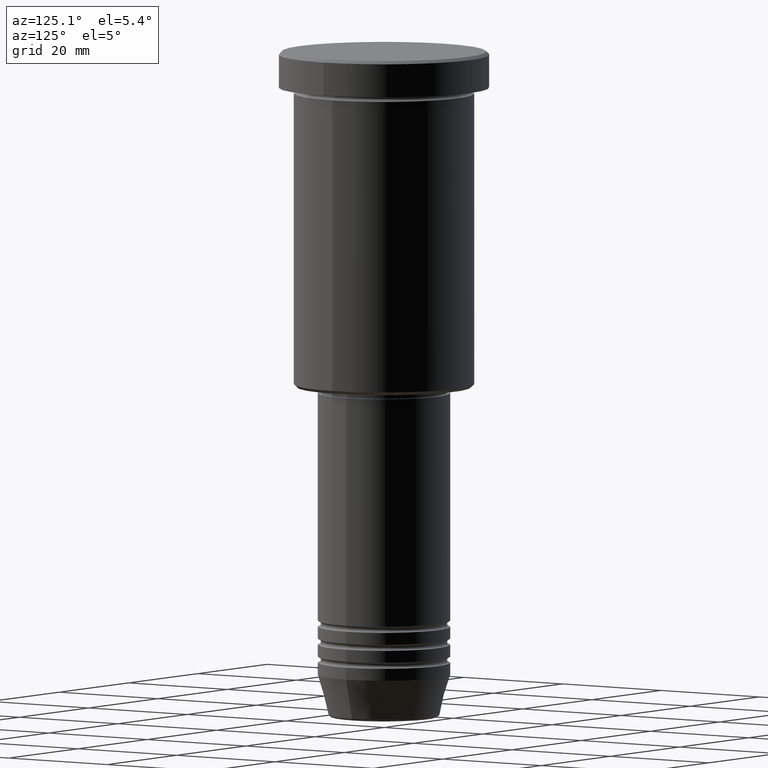
[diagram: clean part render]
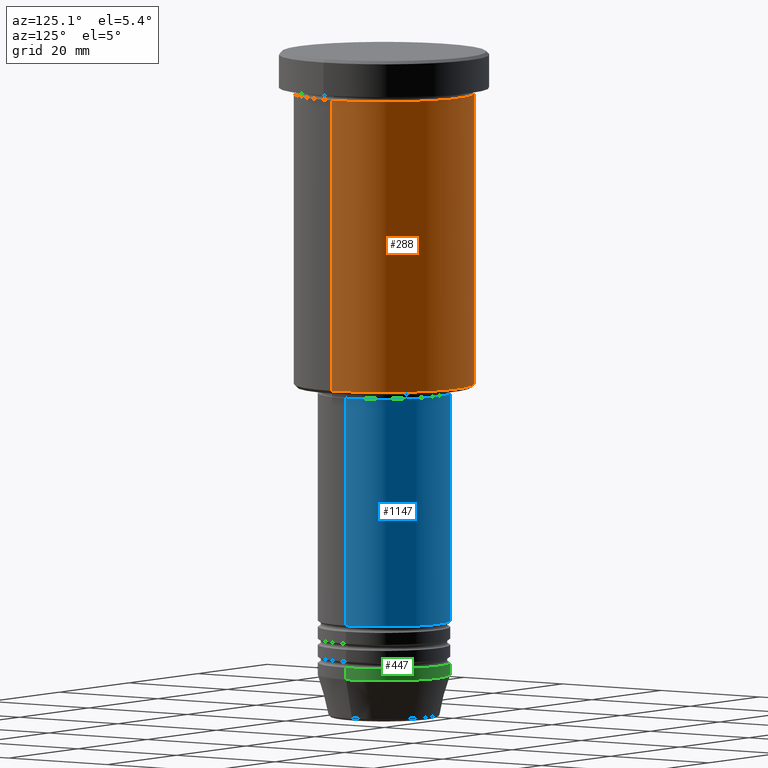
[diagram: same view with three faces highlighted in distinct colors, each labeled with its STEP entity id]
A machine part, auxiliary view with three faces highlighted in distinct colors.
Their STEP definitions:

[orange] entity #288 — the highlighted cylindrical surface (partial cylindrical patch) has radius 15 mm, axis along (-0, -0, 1).
#17 = DIRECTION ( 'NONE',  ( 1.000000000000000000, 0.000000000000000000, 0.000000000000000000 ) ) ;
#68 = VERTEX_POINT ( 'NONE', #1006 ) ;
#83 = CARTESIAN_POINT ( 'NONE',  ( 15.00000000000000000, 0.000000000000000000, -6.999999999999995559 ) ) ;
#90 = AXIS2_PLACEMENT_3D ( 'NONE', #265, #616, #174 ) ;
#161 = EDGE_LOOP ( 'NONE', ( #896, #1159, #1125, #711 ) ) ;
#171 = EDGE_CURVE ( 'NONE', #68, #262, #523, .T. ) ;
#174 = DIRECTION ( 'NONE',  ( -1.000000000000000000, 0.000000000000000000, 0.000000000000000000 ) ) ;
#175 = VERTEX_POINT ( 'NONE', #1128 ) ;
#183 = DIRECTION ( 'NONE',  ( -0.000000000000000000, -0.000000000000000000, 1.000000000000000000 ) ) ;
#201 = VERTEX_POINT ( 'NONE', #1144 ) ;
#262 = VERTEX_POINT ( 'NONE', #83 ) ;
#265 = CARTESIAN_POINT ( 'NONE',  ( 0.000000000000000000, 0.000000000000000000, -55.50000000000000711 ) ) ;
#277 = DIRECTION ( 'NONE',  ( 1.000000000000000000, 0.000000000000000000, 0.000000000000000000 ) ) ;
#288 = ADVANCED_FACE ( 'NONE', ( #727 ), #446, .T. ) ;
#291 = CARTESIAN_POINT ( 'NONE',  ( 0.000000000000000000, 0.000000000000000000, -6.999999999999995559 ) ) ;
#353 = EDGE_CURVE ( 'NONE', #68, #201, #678, .T. ) ;
#446 = CYLINDRICAL_SURFACE ( 'NONE', #1075, 15.00000000000000000 ) ;
#500 = DIRECTION ( 'NONE',  ( -0.000000000000000000, -0.000000000000000000, 1.000000000000000000 ) ) ;
#523 = LINE ( 'NONE', #887, #940 ) ;
#529 = AXIS2_PLACEMENT_3D ( 'NONE', #291, #827, #17 ) ;
#602 = VECTOR ( 'NONE', #1074, 1000.000000000000000 ) ;
#616 = DIRECTION ( 'NONE',  ( -0.000000000000000000, -0.000000000000000000, 1.000000000000000000 ) ) ;
#678 = CIRCLE ( 'NONE', #90, 15.00000000000000000 ) ;
#711 = ORIENTED_EDGE ( 'NONE', *, *, #171, .F. ) ;
#725 = EDGE_CURVE ( 'NONE', #201, #175, #897, .T. ) ;
#727 = FACE_OUTER_BOUND ( 'NONE', #161, .T. ) ;
#807 = CARTESIAN_POINT ( 'NONE',  ( -15.00000000000000000, 1.836970198721029589E-15, 0.000000000000000000 ) ) ;
#827 = DIRECTION ( 'NONE',  ( -0.000000000000000000, -0.000000000000000000, 1.000000000000000000 ) ) ;
#866 = EDGE_CURVE ( 'NONE', #262, #175, #1035, .T. ) ;
#887 = CARTESIAN_POINT ( 'NONE',  ( 15.00000000000000000, 0.000000000000000000, 0.000000000000000000 ) ) ;
#896 = ORIENTED_EDGE ( 'NONE', *, *, #353, .T. ) ;
#897 = LINE ( 'NONE', #807, #602 ) ;
#940 = VECTOR ( 'NONE', #500, 1000.000000000000000 ) ;
#982 = CARTESIAN_POINT ( 'NONE',  ( 0.000000000000000000, 0.000000000000000000, 0.000000000000000000 ) ) ;
#1006 = CARTESIAN_POINT ( 'NONE',  ( 15.00000000000000000, 0.000000000000000000, -55.50000000000000711 ) ) ;
#1035 = CIRCLE ( 'NONE', #529, 15.00000000000000000 ) ;
#1074 = DIRECTION ( 'NONE',  ( -0.000000000000000000, -0.000000000000000000, 1.000000000000000000 ) ) ;
#1075 = AXIS2_PLACEMENT_3D ( 'NONE', #982, #183, #277 ) ;
#1125 = ORIENTED_EDGE ( 'NONE', *, *, #866, .F. ) ;
#1128 = CARTESIAN_POINT ( 'NONE',  ( -15.00000000000000000, 1.836970198721029589E-15, -6.999999999999995559 ) ) ;
#1144 = CARTESIAN_POINT ( 'NONE',  ( -15.00000000000000000, 1.836970198721029589E-15, -55.50000000000000711 ) ) ;
#1159 = ORIENTED_EDGE ( 'NONE', *, *, #725, .T. ) ;

[blue] entity #1147 — the highlighted cylindrical surface (partial cylindrical patch) has radius 11 mm, axis along (-0, -0, 1).
#54 = DIRECTION ( 'NONE',  ( 1.000000000000000000, 0.000000000000000000, 0.000000000000000000 ) ) ;
#109 = EDGE_CURVE ( 'NONE', #936, #806, #328, .T. ) ;
#142 = ORIENTED_EDGE ( 'NONE', *, *, #109, .F. ) ;
#188 = CARTESIAN_POINT ( 'NONE',  ( 0.000000000000000000, 0.000000000000000000, -57.00000000000000000 ) ) ;
#270 = DIRECTION ( 'NONE',  ( -0.000000000000000000, -0.000000000000000000, 1.000000000000000000 ) ) ;
#292 = CARTESIAN_POINT ( 'NONE',  ( -11.00000000000000000, 1.347111479062088405E-15, 0.000000000000000000 ) ) ;
#328 = LINE ( 'NONE', #427, #774 ) ;
#334 = VERTEX_POINT ( 'NONE', #356 ) ;
#356 = CARTESIAN_POINT ( 'NONE',  ( -11.00000000000000000, 1.347111479062088405E-15, -57.00000000000000000 ) ) ;
#364 = ORIENTED_EDGE ( 'NONE', *, *, #1066, .T. ) ;
#390 = CARTESIAN_POINT ( 'NONE',  ( -11.00000000000000000, 1.347111479062088405E-15, -94.99999999999997158 ) ) ;
#427 = CARTESIAN_POINT ( 'NONE',  ( 11.00000000000000000, 0.000000000000000000, 0.000000000000000000 ) ) ;
#436 = AXIS2_PLACEMENT_3D ( 'NONE', #937, #870, #54 ) ;
#467 = VERTEX_POINT ( 'NONE', #390 ) ;
#498 = EDGE_CURVE ( 'NONE', #467, #334, #1099, .T. ) ;
#512 = AXIS2_PLACEMENT_3D ( 'NONE', #188, #270, #708 ) ;
#525 = CYLINDRICAL_SURFACE ( 'NONE', #1174, 11.00000000000000000 ) ;
#662 = ORIENTED_EDGE ( 'NONE', *, *, #498, .T. ) ;
#673 = EDGE_CURVE ( 'NONE', #806, #334, #1154, .T. ) ;
#690 = ORIENTED_EDGE ( 'NONE', *, *, #673, .F. ) ;
#708 = DIRECTION ( 'NONE',  ( 1.000000000000000000, 0.000000000000000000, 0.000000000000000000 ) ) ;
#712 = CARTESIAN_POINT ( 'NONE',  ( 0.000000000000000000, 0.000000000000000000, 0.000000000000000000 ) ) ;
#772 = DIRECTION ( 'NONE',  ( -0.000000000000000000, -0.000000000000000000, 1.000000000000000000 ) ) ;
#774 = VECTOR ( 'NONE', #772, 1000.000000000000000 ) ;
#788 = EDGE_LOOP ( 'NONE', ( #364, #662, #690, #142 ) ) ;
#793 = FACE_OUTER_BOUND ( 'NONE', #788, .T. ) ;
#795 = VECTOR ( 'NONE', #1009, 1000.000000000000000 ) ;
#806 = VERTEX_POINT ( 'NONE', #820 ) ;
#820 = CARTESIAN_POINT ( 'NONE',  ( 11.00000000000000000, 0.000000000000000000, -57.00000000000000000 ) ) ;
#870 = DIRECTION ( 'NONE',  ( -0.000000000000000000, -0.000000000000000000, 1.000000000000000000 ) ) ;
#889 = DIRECTION ( 'NONE',  ( -0.000000000000000000, -0.000000000000000000, 1.000000000000000000 ) ) ;
#936 = VERTEX_POINT ( 'NONE', #1004 ) ;
#937 = CARTESIAN_POINT ( 'NONE',  ( 0.000000000000000000, 0.000000000000000000, -94.99999999999997158 ) ) ;
#1004 = CARTESIAN_POINT ( 'NONE',  ( 11.00000000000000000, 0.000000000000000000, -94.99999999999997158 ) ) ;
#1009 = DIRECTION ( 'NONE',  ( -0.000000000000000000, -0.000000000000000000, 1.000000000000000000 ) ) ;
#1066 = EDGE_CURVE ( 'NONE', #936, #467, #1135, .T. ) ;
#1099 = LINE ( 'NONE', #292, #795 ) ;
#1135 = CIRCLE ( 'NONE', #436, 11.00000000000000000 ) ;
#1147 = ADVANCED_FACE ( 'NONE', ( #793 ), #525, .T. ) ;
#1153 = DIRECTION ( 'NONE',  ( 1.000000000000000000, 0.000000000000000000, 0.000000000000000000 ) ) ;
#1154 = CIRCLE ( 'NONE', #512, 11.00000000000000000 ) ;
#1174 = AXIS2_PLACEMENT_3D ( 'NONE', #712, #889, #1153 ) ;

[green] entity #447 — the highlighted cylindrical surface (partial cylindrical patch) has radius 11 mm, axis along (-0, -0, 1).
#85 = EDGE_CURVE ( 'NONE', #218, #576, #1158, .T. ) ;
#88 = ORIENTED_EDGE ( 'NONE', *, *, #85, .F. ) ;
#128 = EDGE_CURVE ( 'NONE', #576, #990, #1110, .T. ) ;
#131 = CARTESIAN_POINT ( 'NONE',  ( 11.00000000000000000, 0.000000000000000000, -102.0000000000000142 ) ) ;
#147 = CARTESIAN_POINT ( 'NONE',  ( 11.00000000000000000, 0.000000000000000000, -104.0000000000000142 ) ) ;
#150 = AXIS2_PLACEMENT_3D ( 'NONE', #1161, #279, #1069 ) ;
#163 = LINE ( 'NONE', #627, #514 ) ;
#209 = VECTOR ( 'NONE', #1149, 1000.000000000000000 ) ;
#215 = CYLINDRICAL_SURFACE ( 'NONE', #528, 11.00000000000000000 ) ;
#218 = VERTEX_POINT ( 'NONE', #147 ) ;
#263 = DIRECTION ( 'NONE',  ( -0.000000000000000000, -0.000000000000000000, 1.000000000000000000 ) ) ;
#279 = DIRECTION ( 'NONE',  ( -0.000000000000000000, -0.000000000000000000, 1.000000000000000000 ) ) ;
#281 = EDGE_LOOP ( 'NONE', ( #663, #733, #948, #88 ) ) ;
#397 = DIRECTION ( 'NONE',  ( -0.000000000000000000, -0.000000000000000000, 1.000000000000000000 ) ) ;
#408 = CARTESIAN_POINT ( 'NONE',  ( -11.00000000000000000, 1.347111479062088405E-15, -104.0000000000000142 ) ) ;
#447 = ADVANCED_FACE ( 'NONE', ( #1116 ), #215, .T. ) ;
#482 = CARTESIAN_POINT ( 'NONE',  ( 0.000000000000000000, 0.000000000000000000, 0.000000000000000000 ) ) ;
#514 = VECTOR ( 'NONE', #263, 1000.000000000000000 ) ;
#516 = CARTESIAN_POINT ( 'NONE',  ( -11.00000000000000000, 1.347111479062088405E-15, -102.0000000000000142 ) ) ;
#528 = AXIS2_PLACEMENT_3D ( 'NONE', #482, #397, #660 ) ;
#572 = VERTEX_POINT ( 'NONE', #408 ) ;
#576 = VERTEX_POINT ( 'NONE', #131 ) ;
#589 = DIRECTION ( 'NONE',  ( 1.000000000000000000, 0.000000000000000000, 0.000000000000000000 ) ) ;
#627 = CARTESIAN_POINT ( 'NONE',  ( -11.00000000000000000, 1.347111479062088405E-15, 0.000000000000000000 ) ) ;
#658 = CIRCLE ( 'NONE', #150, 11.00000000000000000 ) ;
#660 = DIRECTION ( 'NONE',  ( 1.000000000000000000, 0.000000000000000000, 0.000000000000000000 ) ) ;
#663 = ORIENTED_EDGE ( 'NONE', *, *, #693, .T. ) ;
#689 = CARTESIAN_POINT ( 'NONE',  ( 0.000000000000000000, 0.000000000000000000, -102.0000000000000142 ) ) ;
#693 = EDGE_CURVE ( 'NONE', #218, #572, #658, .T. ) ;
#733 = ORIENTED_EDGE ( 'NONE', *, *, #1129, .T. ) ;
#791 = CARTESIAN_POINT ( 'NONE',  ( 11.00000000000000000, 0.000000000000000000, 0.000000000000000000 ) ) ;
#847 = AXIS2_PLACEMENT_3D ( 'NONE', #689, #947, #589 ) ;
#947 = DIRECTION ( 'NONE',  ( -0.000000000000000000, -0.000000000000000000, 1.000000000000000000 ) ) ;
#948 = ORIENTED_EDGE ( 'NONE', *, *, #128, .F. ) ;
#990 = VERTEX_POINT ( 'NONE', #516 ) ;
#1069 = DIRECTION ( 'NONE',  ( 1.000000000000000000, 0.000000000000000000, 0.000000000000000000 ) ) ;
#1110 = CIRCLE ( 'NONE', #847, 11.00000000000000000 ) ;
#1116 = FACE_OUTER_BOUND ( 'NONE', #281, .T. ) ;
#1129 = EDGE_CURVE ( 'NONE', #572, #990, #163, .T. ) ;
#1149 = DIRECTION ( 'NONE',  ( -0.000000000000000000, -0.000000000000000000, 1.000000000000000000 ) ) ;
#1158 = LINE ( 'NONE', #791, #209 ) ;
#1161 = CARTESIAN_POINT ( 'NONE',  ( 0.000000000000000000, 0.000000000000000000, -104.0000000000000142 ) ) ;